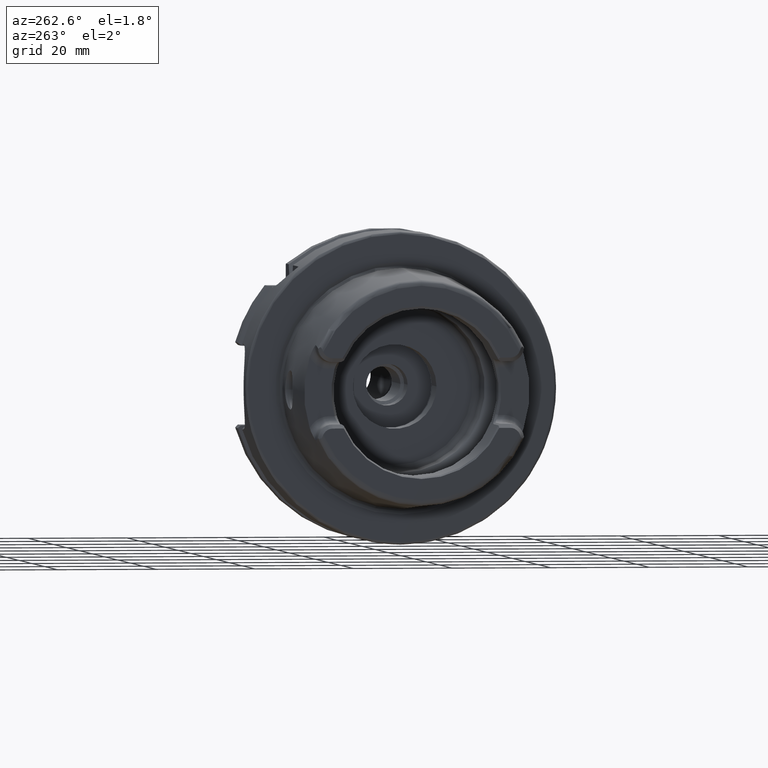
[diagram: clean part render]
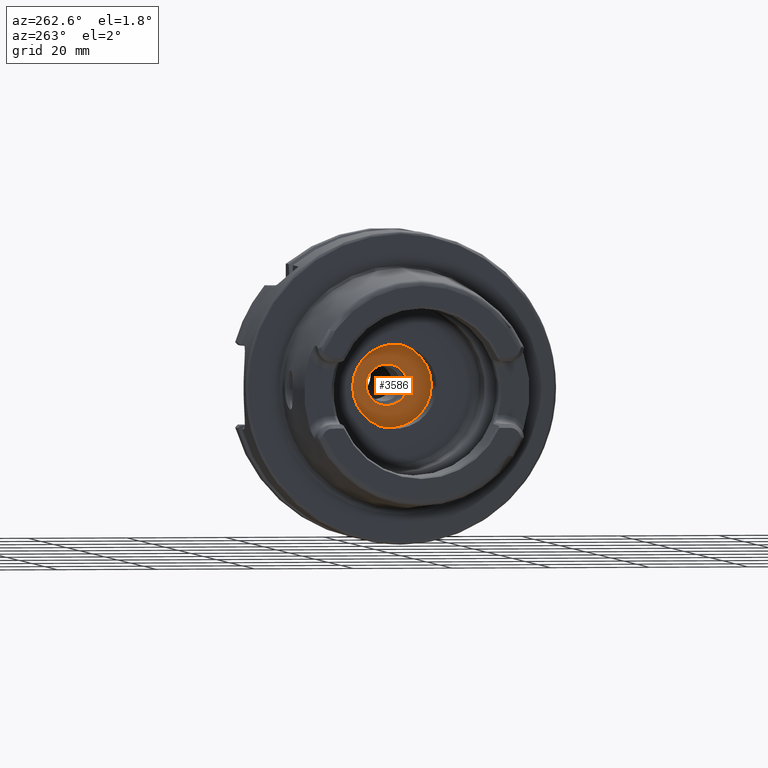
[diagram: same view with one face highlighted and labeled with its STEP entity id]
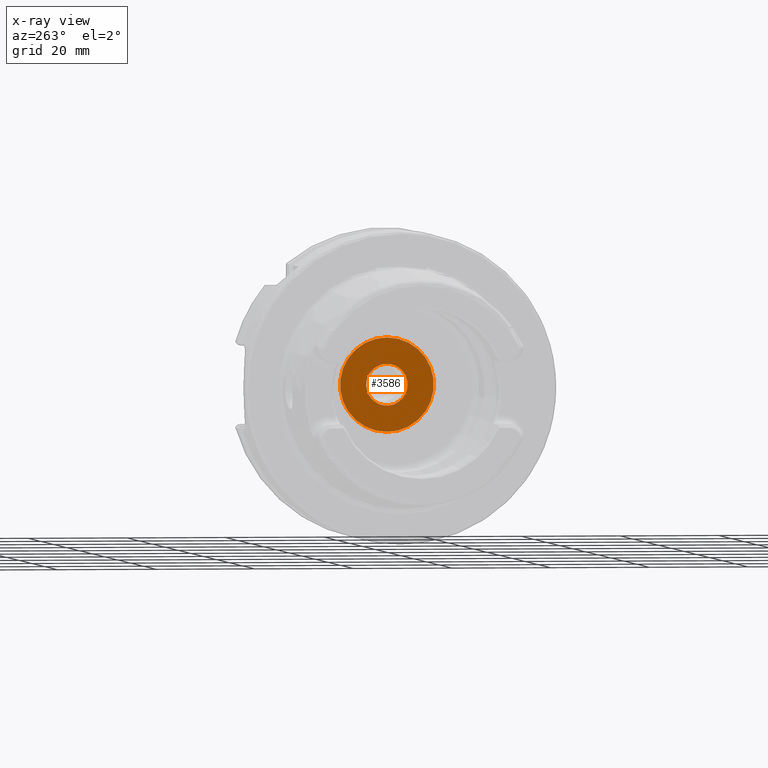
[diagram: x-ray of the same camera — body ghosted, the highlighted face saturated]
A machine part, auxiliary view. The second image highlights one B-rep face of the part: STEP entity #3586.
The next image is the same camera in x-ray: the body ghosted, the highlighted face saturated — about 0% of this face is hidden behind the body in this view.
In plain terms, the highlighted planar face has unit normal (1, 0, 0).
Its self-contained STEP definition (entity closure, byte-faithful):
#382=CARTESIAN_POINT('',(2.2E1,0.E0,0.E0));
#383=DIRECTION('',(-1.E0,0.E0,0.E0));
#384=DIRECTION('',(0.E0,0.E0,-1.E0));
#385=AXIS2_PLACEMENT_3D('',#382,#383,#384);
#391=CARTESIAN_POINT('',(2.2E1,0.E0,0.E0));
#392=DIRECTION('',(1.E0,0.E0,0.E0));
#393=DIRECTION('',(0.E0,0.E0,-1.E0));
#394=AXIS2_PLACEMENT_3D('',#391,#392,#393);
#396=CARTESIAN_POINT('',(2.2E1,0.E0,0.E0));
#397=DIRECTION('',(-1.E0,0.E0,0.E0));
#398=DIRECTION('',(0.E0,1.E0,0.E0));
#399=AXIS2_PLACEMENT_3D('',#396,#397,#398);
#401=CARTESIAN_POINT('',(2.2E1,0.E0,0.E0));
#402=DIRECTION('',(-1.E0,0.E0,0.E0));
#403=DIRECTION('',(0.E0,-1.E0,0.E0));
#404=AXIS2_PLACEMENT_3D('',#401,#402,#403);
#2743=CARTESIAN_POINT('',(2.2E1,0.E0,-9.5E0));
#2745=VERTEX_POINT('',#2743);
#2747=CARTESIAN_POINT('',(2.2E1,0.E0,9.5E0));
#2749=VERTEX_POINT('',#2747);
#3186=CARTESIAN_POINT('',(2.2E1,4.2E0,0.E0));
#3187=CARTESIAN_POINT('',(2.2E1,-4.2E0,0.E0));
#3188=VERTEX_POINT('',#3186);
#3189=VERTEX_POINT('',#3187);
#3571=CARTESIAN_POINT('',(2.2E1,0.E0,0.E0));
#3572=DIRECTION('',(1.E0,0.E0,0.E0));
#3573=DIRECTION('',(0.E0,0.E0,1.E0));
#3574=AXIS2_PLACEMENT_3D('',#3571,#3572,#3573);
#3575=PLANE('',#3574);
#3576=ORIENTED_EDGE('',*,*,#3550,.F.);
#3577=ORIENTED_EDGE('',*,*,#3566,.T.);
#3578=EDGE_LOOP('',(#3576,#3577));
#3579=FACE_OUTER_BOUND('',#3578,.F.);
#3581=ORIENTED_EDGE('',*,*,#3580,.T.);
#3583=ORIENTED_EDGE('',*,*,#3582,.T.);
#3584=EDGE_LOOP('',(#3581,#3583));
#3585=FACE_BOUND('',#3584,.F.);
#3586=ADVANCED_FACE('',(#3579,#3585),#3575,.F.);
#386=CIRCLE('',#385,9.5E0);
#395=CIRCLE('',#394,9.5E0);
#400=CIRCLE('',#399,4.2E0);
#405=CIRCLE('',#404,4.2E0);
#3550=EDGE_CURVE('',#2745,#2749,#386,.T.);
#3566=EDGE_CURVE('',#2745,#2749,#395,.T.);
#3580=EDGE_CURVE('',#3188,#3189,#400,.T.);
#3582=EDGE_CURVE('',#3189,#3188,#405,.T.);